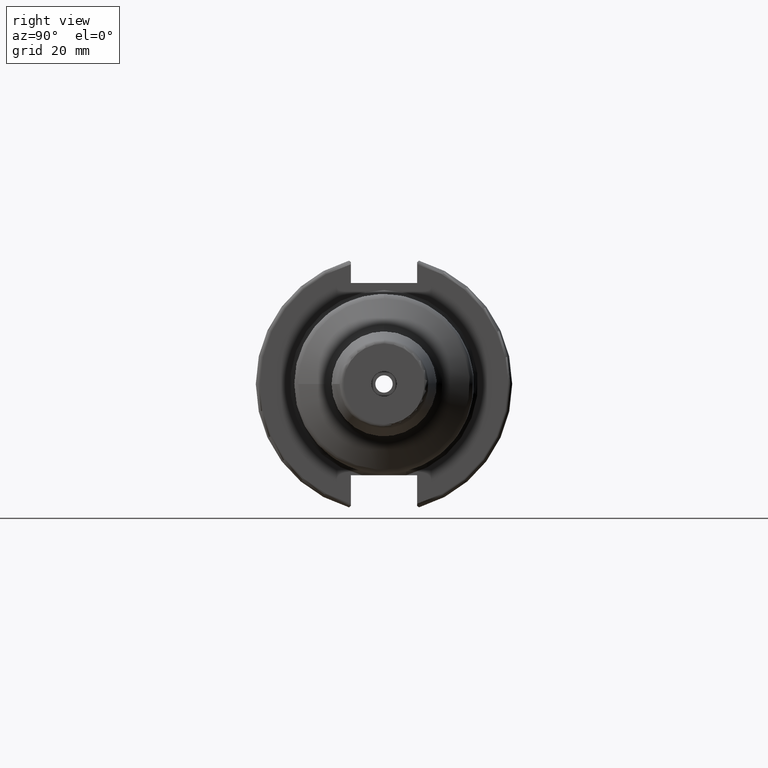
[diagram: clean part render]
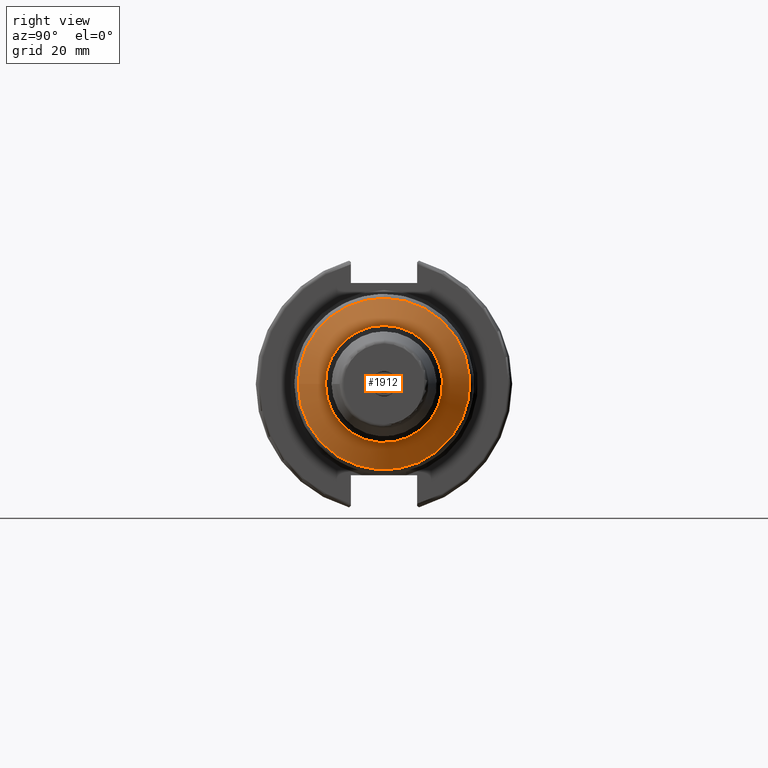
[diagram: same view with one face highlighted and labeled with its STEP entity id]
A machine part, right view. The second image highlights one B-rep face of the part: STEP entity #1912.
In plain terms, the highlighted conical surface has half-angle 60 deg.
Its self-contained STEP definition (entity closure, byte-faithful):
#175=LINE('',#2957,#270);
#270=VECTOR('',#2329,17.625);
#365=CONICAL_SURFACE('',#2052,17.625,1.0471975511966);
#390=FACE_OUTER_BOUND('',#502,.T.);
#502=EDGE_LOOP('',(#1282,#1283,#1284,#1285,#1286,#1287));
#628=CIRCLE('',#2047,14.5);
#632=CIRCLE('',#2051,14.5);
#633=CIRCLE('',#2053,21.25);
#634=CIRCLE('',#2054,21.25);
#765=VERTEX_POINT('',#2946);
#766=VERTEX_POINT('',#2947);
#769=VERTEX_POINT('',#2956);
#770=VERTEX_POINT('',#2958);
#968=EDGE_CURVE('',#765,#766,#628,.T.);
#972=EDGE_CURVE('',#766,#765,#632,.T.);
#973=EDGE_CURVE('',#765,#769,#175,.T.);
#974=EDGE_CURVE('',#770,#769,#633,.T.);
#975=EDGE_CURVE('',#769,#770,#634,.T.);
#1282=ORIENTED_EDGE('',*,*,#968,.F.);
#1283=ORIENTED_EDGE('',*,*,#973,.T.);
#1284=ORIENTED_EDGE('',*,*,#974,.F.);
#1285=ORIENTED_EDGE('',*,*,#975,.F.);
#1286=ORIENTED_EDGE('',*,*,#973,.F.);
#1287=ORIENTED_EDGE('',*,*,#972,.F.);
#1912=ADVANCED_FACE('',(#390),#365,.T.);
#2047=AXIS2_PLACEMENT_3D('',#2948,#2317,#2318);
#2051=AXIS2_PLACEMENT_3D('',#2954,#2325,#2326);
#2052=AXIS2_PLACEMENT_3D('',#2955,#2327,#2328);
#2053=AXIS2_PLACEMENT_3D('',#2959,#2330,#2331);
#2054=AXIS2_PLACEMENT_3D('',#2960,#2332,#2333);
#2317=DIRECTION('center_axis',(1.,0.,0.));
#2318=DIRECTION('ref_axis',(0.,-1.,3.06161699786838E-17));
#2325=DIRECTION('center_axis',(1.,0.,0.));
#2326=DIRECTION('ref_axis',(0.,-1.,3.06161699786838E-17));
#2327=DIRECTION('center_axis',(-1.,0.,0.));
#2328=DIRECTION('ref_axis',(0.,1.,0.));
#2329=DIRECTION('',(-0.5,-0.866025403784439,-1.06057523872491E-16));
#2330=DIRECTION('center_axis',(-1.,0.,0.));
#2331=DIRECTION('ref_axis',(0.,-1.,3.06161699786838E-17));
#2332=DIRECTION('center_axis',(-1.,0.,0.));
#2333=DIRECTION('ref_axis',(0.,-1.,3.06161699786838E-17));
#2946=CARTESIAN_POINT('',(56.6339745962156,-14.5,-1.77573785876366E-15));
#2947=CARTESIAN_POINT('',(56.6339745962156,-1.77573785876366E-15,14.5));
#2948=CARTESIAN_POINT('Origin',(56.6339745962156,0.,-2.21967232345458E-15));
#2954=CARTESIAN_POINT('Origin',(56.6339745962156,0.,-2.21967232345458E-15));
#2955=CARTESIAN_POINT('Origin',(54.829755004998,0.,0.));
#2956=CARTESIAN_POINT('',(52.7368602791856,-21.25,-2.60237444818813E-15));
#2957=CARTESIAN_POINT('',(54.829755004998,-17.625,-2.15843998349721E-15));
#2958=CARTESIAN_POINT('',(52.7368602791856,-2.60237444818813E-15,21.25));
#2959=CARTESIAN_POINT('Origin',(52.7368602791856,0.,-3.25296806023516E-15));
#2960=CARTESIAN_POINT('Origin',(52.7368602791856,0.,-3.25296806023516E-15));